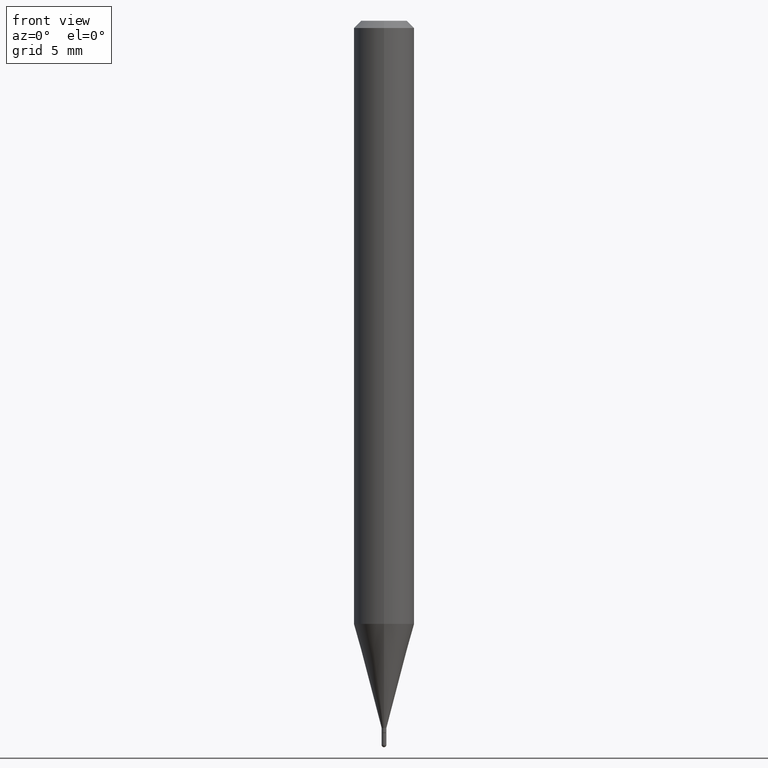
[diagram: clean part render]
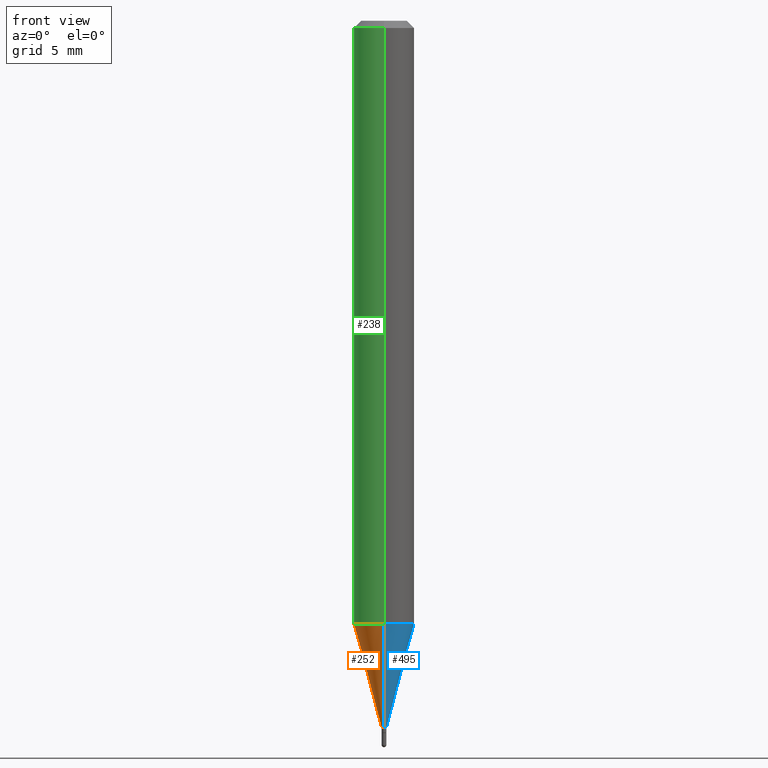
[diagram: same view with three faces highlighted in distinct colors, each labeled with its STEP entity id]
A machine part, front view with three faces highlighted in distinct colors.
Their STEP definitions:

[orange] entity #252 — the highlighted conical surface has half-angle 15 deg.
#34 = AXIS2_PLACEMENT_3D ( 'NONE', #491, #338, #137 ) ;
#50 = ORIENTED_EDGE ( 'NONE', *, *, #277, .T. ) ;
#78 = DIRECTION ( 'NONE',  ( 1.839019923739605443E-15, 0.2588190451025256800, 0.9659258262890669799 ) ) ;
#83 = EDGE_LOOP ( 'NONE', ( #393, #50, #440, #464 ) ) ;
#92 = VECTOR ( 'NONE', #78, 39.37007874015748143 ) ;
#98 = CARTESIAN_POINT ( 'NONE',  ( -4.364351673553611504E-16, -0.06250000000000434375, -1.245407078564790382 ) ) ;
#120 = DIRECTION ( 'NONE',  ( -6.982962677686265922E-15, -1.000000000000000000, 0.000000000000000000 ) ) ;
#137 = DIRECTION ( 'NONE',  ( -6.982962677686265922E-15, -1.000000000000000000, 0.000000000000000000 ) ) ;
#138 = AXIS2_PLACEMENT_3D ( 'NONE', #218, #287, #211 ) ;
#157 = CARTESIAN_POINT ( 'NONE',  ( -3.491481338839502869E-17, -0.005000000000005012588, -1.459999999999999964 ) ) ;
#171 = VERTEX_POINT ( 'NONE', #174 ) ;
#173 = CIRCLE ( 'NONE', #138, 0.06250000000000000000 ) ;
#174 = CARTESIAN_POINT ( 'NONE',  ( 4.440892098500928887E-16, 0.06249999999999564237, -1.245407078564790826 ) ) ;
#201 = CARTESIAN_POINT ( 'NONE',  ( 3.552713678804014516E-17, 0.004999999999994823689, -1.459999999999999964 ) ) ;
#211 = DIRECTION ( 'NONE',  ( -6.982962677686265922E-15, -1.000000000000000000, 4.370956789862821150E-15 ) ) ;
#218 = CARTESIAN_POINT ( 'NONE',  ( 3.047535915427134078E-29, -4.345549192689407403E-15, -1.245407078564790604 ) ) ;
#236 = DIRECTION ( 'NONE',  ( -1.807323732225335267E-15, -0.2588190451025189631, 0.9659258262890687563 ) ) ;
#252 = ADVANCED_FACE ( 'NONE', ( #333 ), #255, .T. ) ;
#255 = CONICAL_SURFACE ( 'NONE', #34, 0.004999999999999917705, 0.2617993877991510177 ) ;
#270 = CARTESIAN_POINT ( 'NONE',  ( -3.491481338839502869E-17, -0.005000000000005012588, -1.459999999999999964 ) ) ;
#273 = CARTESIAN_POINT ( 'NONE',  ( 3.572649066400936026E-29, -5.094319705198680506E-15, -1.459999999999999964 ) ) ;
#277 = EDGE_CURVE ( 'NONE', #467, #317, #394, .T. ) ;
#287 = DIRECTION ( 'NONE',  ( -2.447019908493791641E-29, 3.489260072053890687E-15, 1.000000000000000000 ) ) ;
#292 = EDGE_CURVE ( 'NONE', #467, #171, #504, .T. ) ;
#311 = AXIS2_PLACEMENT_3D ( 'NONE', #273, #392, #120 ) ;
#317 = VERTEX_POINT ( 'NONE', #270 ) ;
#333 = FACE_OUTER_BOUND ( 'NONE', #83, .T. ) ;
#338 = DIRECTION ( 'NONE',  ( -2.447019908493791641E-29, 3.489260072053890687E-15, 1.000000000000000000 ) ) ;
#356 = CARTESIAN_POINT ( 'NONE',  ( 2.398081733190667635E-16, 0.004999999999994823689, -1.459999999999999964 ) ) ;
#392 = DIRECTION ( 'NONE',  ( -2.447019908493791641E-29, 3.489260072053890687E-15, 1.000000000000000000 ) ) ;
#393 = ORIENTED_EDGE ( 'NONE', *, *, #292, .F. ) ;
#394 = CIRCLE ( 'NONE', #311, 0.004999999999999917705 ) ;
#396 = EDGE_CURVE ( 'NONE', #317, #510, #508, .T. ) ;
#402 = VECTOR ( 'NONE', #236, 39.37007874015748854 ) ;
#426 = EDGE_CURVE ( 'NONE', #171, #510, #173, .T. ) ;
#440 = ORIENTED_EDGE ( 'NONE', *, *, #396, .T. ) ;
#464 = ORIENTED_EDGE ( 'NONE', *, *, #426, .F. ) ;
#467 = VERTEX_POINT ( 'NONE', #356 ) ;
#491 = CARTESIAN_POINT ( 'NONE',  ( 3.572649066400936026E-29, -5.094319705198680506E-15, -1.459999999999999964 ) ) ;
#504 = LINE ( 'NONE', #201, #92 ) ;
#508 = LINE ( 'NONE', #157, #402 ) ;
#510 = VERTEX_POINT ( 'NONE', #98 ) ;

[blue] entity #495 — the highlighted conical surface has half-angle 15 deg.
#9 = DIRECTION ( 'NONE',  ( -6.982962677686265922E-15, -1.000000000000000000, 0.000000000000000000 ) ) ;
#24 = AXIS2_PLACEMENT_3D ( 'NONE', #378, #417, #59 ) ;
#38 = ORIENTED_EDGE ( 'NONE', *, *, #292, .T. ) ;
#40 = ORIENTED_EDGE ( 'NONE', *, *, #135, .F. ) ;
#48 = EDGE_LOOP ( 'NONE', ( #114, #38, #40, #431 ) ) ;
#59 = DIRECTION ( 'NONE',  ( -6.982962677686265922E-15, -1.000000000000000000, 4.370956789862821150E-15 ) ) ;
#71 = CIRCLE ( 'NONE', #361, 0.004999999999999917705 ) ;
#73 = AXIS2_PLACEMENT_3D ( 'NONE', #439, #476, #9 ) ;
#78 = DIRECTION ( 'NONE',  ( 1.839019923739605443E-15, 0.2588190451025256800, 0.9659258262890669799 ) ) ;
#92 = VECTOR ( 'NONE', #78, 39.37007874015748143 ) ;
#98 = CARTESIAN_POINT ( 'NONE',  ( -4.364351673553611504E-16, -0.06250000000000434375, -1.245407078564790382 ) ) ;
#107 = CONICAL_SURFACE ( 'NONE', #73, 0.004999999999999917705, 0.2617993877991510177 ) ;
#110 = DIRECTION ( 'NONE',  ( -2.447019908493791641E-29, 3.489260072053890687E-15, 1.000000000000000000 ) ) ;
#114 = ORIENTED_EDGE ( 'NONE', *, *, #365, .T. ) ;
#135 = EDGE_CURVE ( 'NONE', #510, #171, #249, .T. ) ;
#157 = CARTESIAN_POINT ( 'NONE',  ( -3.491481338839502869E-17, -0.005000000000005012588, -1.459999999999999964 ) ) ;
#171 = VERTEX_POINT ( 'NONE', #174 ) ;
#174 = CARTESIAN_POINT ( 'NONE',  ( 4.440892098500928887E-16, 0.06249999999999564237, -1.245407078564790826 ) ) ;
#201 = CARTESIAN_POINT ( 'NONE',  ( 3.552713678804014516E-17, 0.004999999999994823689, -1.459999999999999964 ) ) ;
#236 = DIRECTION ( 'NONE',  ( -1.807323732225335267E-15, -0.2588190451025189631, 0.9659258262890687563 ) ) ;
#249 = CIRCLE ( 'NONE', #24, 0.06250000000000000000 ) ;
#270 = CARTESIAN_POINT ( 'NONE',  ( -3.491481338839502869E-17, -0.005000000000005012588, -1.459999999999999964 ) ) ;
#292 = EDGE_CURVE ( 'NONE', #467, #171, #504, .T. ) ;
#307 = CARTESIAN_POINT ( 'NONE',  ( 3.572649066400936026E-29, -5.094319705198680506E-15, -1.459999999999999964 ) ) ;
#317 = VERTEX_POINT ( 'NONE', #270 ) ;
#356 = CARTESIAN_POINT ( 'NONE',  ( 2.398081733190667635E-16, 0.004999999999994823689, -1.459999999999999964 ) ) ;
#361 = AXIS2_PLACEMENT_3D ( 'NONE', #307, #110, #466 ) ;
#365 = EDGE_CURVE ( 'NONE', #317, #467, #71, .T. ) ;
#378 = CARTESIAN_POINT ( 'NONE',  ( 3.047535915427134078E-29, -4.345549192689407403E-15, -1.245407078564790604 ) ) ;
#396 = EDGE_CURVE ( 'NONE', #317, #510, #508, .T. ) ;
#402 = VECTOR ( 'NONE', #236, 39.37007874015748854 ) ;
#404 = FACE_OUTER_BOUND ( 'NONE', #48, .T. ) ;
#417 = DIRECTION ( 'NONE',  ( -2.447019908493791641E-29, 3.489260072053890687E-15, 1.000000000000000000 ) ) ;
#431 = ORIENTED_EDGE ( 'NONE', *, *, #396, .F. ) ;
#439 = CARTESIAN_POINT ( 'NONE',  ( 3.572649066400936026E-29, -5.094319705198680506E-15, -1.459999999999999964 ) ) ;
#466 = DIRECTION ( 'NONE',  ( -6.982962677686265922E-15, -1.000000000000000000, 0.000000000000000000 ) ) ;
#467 = VERTEX_POINT ( 'NONE', #356 ) ;
#476 = DIRECTION ( 'NONE',  ( -2.447019908493791641E-29, 3.489260072053890687E-15, 1.000000000000000000 ) ) ;
#495 = ADVANCED_FACE ( 'NONE', ( #404 ), #107, .T. ) ;
#504 = LINE ( 'NONE', #201, #92 ) ;
#508 = LINE ( 'NONE', #157, #402 ) ;
#510 = VERTEX_POINT ( 'NONE', #98 ) ;

[green] entity #238 — the highlighted cylindrical surface (edge-blend (fillet) strip) has radius 1.5875 mm, axis along (-0, 0, 1).
#15 = CARTESIAN_POINT ( 'NONE',  ( 3.670529862740689792E-31, -5.233890108080838965E-17, -0.01500000000000000812 ) ) ;
#17 = CARTESIAN_POINT ( 'NONE',  ( 4.440892098500625669E-16, 0.06250000000000000000, -2.180787545033681680E-16 ) ) ;
#26 = CARTESIAN_POINT ( 'NONE',  ( 0.000000000000000000, 0.000000000000000000, 0.000000000000000000 ) ) ;
#53 = ORIENTED_EDGE ( 'NONE', *, *, #426, .T. ) ;
#93 = VERTEX_POINT ( 'NONE', #446 ) ;
#98 = CARTESIAN_POINT ( 'NONE',  ( -4.364351673553611504E-16, -0.06250000000000434375, -1.245407078564790382 ) ) ;
#124 = EDGE_CURVE ( 'NONE', #391, #93, #328, .T. ) ;
#138 = AXIS2_PLACEMENT_3D ( 'NONE', #218, #287, #211 ) ;
#139 = DIRECTION ( 'NONE',  ( -2.447019908493791641E-29, 3.489260072053890687E-15, 1.000000000000000000 ) ) ;
#141 = CARTESIAN_POINT ( 'NONE',  ( -4.364351673553916201E-16, -0.06250000000000000000, 2.180787545033681680E-16 ) ) ;
#171 = VERTEX_POINT ( 'NONE', #174 ) ;
#173 = CIRCLE ( 'NONE', #138, 0.06250000000000000000 ) ;
#174 = CARTESIAN_POINT ( 'NONE',  ( 4.440892098500928887E-16, 0.06249999999999564237, -1.245407078564790826 ) ) ;
#177 = FACE_OUTER_BOUND ( 'NONE', #271, .T. ) ;
#210 = EDGE_CURVE ( 'NONE', #171, #391, #368, .T. ) ;
#211 = DIRECTION ( 'NONE',  ( -6.982962677686265922E-15, -1.000000000000000000, 4.370956789862821150E-15 ) ) ;
#215 = DIRECTION ( 'NONE',  ( -2.447019908493791641E-29, 3.489260072053890687E-15, 1.000000000000000000 ) ) ;
#218 = CARTESIAN_POINT ( 'NONE',  ( 3.047535915427134078E-29, -4.345549192689407403E-15, -1.245407078564790604 ) ) ;
#224 = DIRECTION ( 'NONE',  ( -6.982962677686265922E-15, -1.000000000000000000, 3.483106191921935554E-15 ) ) ;
#227 = DIRECTION ( 'NONE',  ( -2.447019908493791361E-29, 3.489260072053890687E-15, 1.000000000000000000 ) ) ;
#238 = ADVANCED_FACE ( 'NONE', ( #177 ), #489, .T. ) ;
#248 = VECTOR ( 'NONE', #376, 39.37007874015748143 ) ;
#259 = EDGE_CURVE ( 'NONE', #510, #93, #295, .T. ) ;
#271 = EDGE_LOOP ( 'NONE', ( #308, #53, #398, #473 ) ) ;
#281 = AXIS2_PLACEMENT_3D ( 'NONE', #15, #139, #224 ) ;
#287 = DIRECTION ( 'NONE',  ( -2.447019908493791641E-29, 3.489260072053890687E-15, 1.000000000000000000 ) ) ;
#295 = LINE ( 'NONE', #141, #296 ) ;
#296 = VECTOR ( 'NONE', #227, 39.37007874015748143 ) ;
#308 = ORIENTED_EDGE ( 'NONE', *, *, #210, .F. ) ;
#328 = CIRCLE ( 'NONE', #281, 0.06250000000000000000 ) ;
#351 = CARTESIAN_POINT ( 'NONE',  ( 4.440892098500932831E-16, 0.06249999999999995143, -0.01500000000000022669 ) ) ;
#368 = LINE ( 'NONE', #17, #248 ) ;
#376 = DIRECTION ( 'NONE',  ( -2.447019908493791361E-29, 3.489260072053890687E-15, 1.000000000000000000 ) ) ;
#391 = VERTEX_POINT ( 'NONE', #351 ) ;
#398 = ORIENTED_EDGE ( 'NONE', *, *, #259, .T. ) ;
#426 = EDGE_CURVE ( 'NONE', #171, #510, #173, .T. ) ;
#428 = AXIS2_PLACEMENT_3D ( 'NONE', #26, #215, #448 ) ;
#446 = CARTESIAN_POINT ( 'NONE',  ( -4.364351673553912750E-16, -0.06250000000000005551, -0.01499999999999979128 ) ) ;
#448 = DIRECTION ( 'NONE',  ( -6.982962677686265922E-15, -1.000000000000000000, 3.489260072053890687E-15 ) ) ;
#473 = ORIENTED_EDGE ( 'NONE', *, *, #124, .F. ) ;
#489 = CYLINDRICAL_SURFACE ( 'NONE', #428, 0.06250000000000000000 ) ;
#510 = VERTEX_POINT ( 'NONE', #98 ) ;